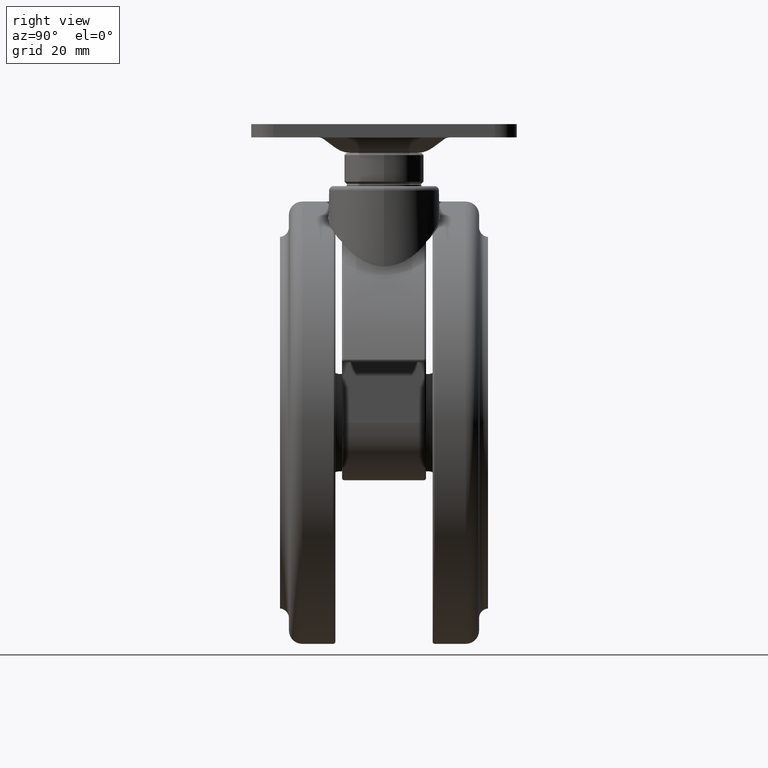
[diagram: clean part render]
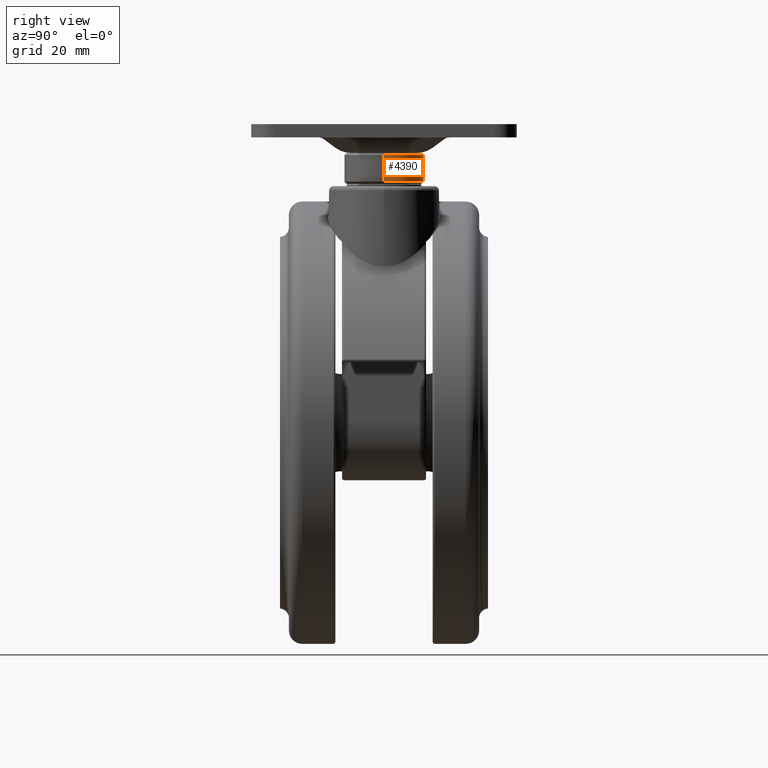
[diagram: same view with one face highlighted and labeled with its STEP entity id]
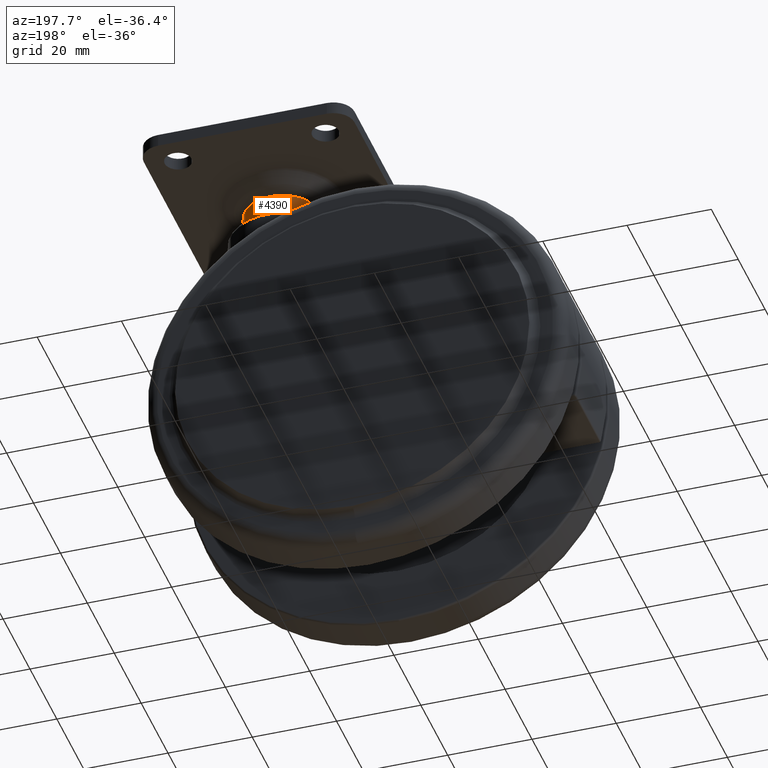
[diagram: same view with one face highlighted and labeled with its STEP entity id]
A machine part, right view. The second image highlights one B-rep face of the part: STEP entity #4390.
A second angle (auxiliary view) of the same face is appended — the face is thin or edge-on in the first view.
In plain terms, the highlighted cylindrical surface (partial cylindrical patch) has radius 9 mm, axis along (0, 0, -1).
Its self-contained STEP definition (entity closure, byte-faithful):
#74 = DIRECTION ( 'NONE',  ( 0.0000000000000000000, 0.0000000000000000000, -1.000000000000000000 ) ) ;
#143 = EDGE_CURVE ( 'NONE', #4048, #2984, #1860, .T. ) ;
#185 = CARTESIAN_POINT ( 'NONE',  ( 9.000000000000000000, 0.0000000000000000000, 1.000000000000000000 ) ) ;
#522 = ORIENTED_EDGE ( 'NONE', *, *, #3384, .F. ) ;
#593 = ORIENTED_EDGE ( 'NONE', *, *, #143, .T. ) ;
#691 = FACE_OUTER_BOUND ( 'NONE', #5001, .T. ) ;
#767 = CARTESIAN_POINT ( 'NONE',  ( 9.000000000000000000, 1.102182119232617700E-015, 7.000000000000000000 ) ) ;
#891 = AXIS2_PLACEMENT_3D ( 'NONE', #3608, #2786, #5239 ) ;
#1493 = DIRECTION ( 'NONE',  ( 0.0000000000000000000, 0.0000000000000000000, -1.000000000000000000 ) ) ;
#1514 = CYLINDRICAL_SURFACE ( 'NONE', #891, 9.000000000000000000 ) ;
#1580 = DIRECTION ( 'NONE',  ( 0.0000000000000000000, 0.0000000000000000000, -1.000000000000000000 ) ) ;
#1692 = DIRECTION ( 'NONE',  ( 0.0000000000000000000, 0.0000000000000000000, -1.000000000000000000 ) ) ;
#1860 = LINE ( 'NONE', #1915, #2704 ) ;
#1915 = CARTESIAN_POINT ( 'NONE',  ( 9.000000000000000000, 1.102182119232617700E-015, 0.0000000000000000000 ) ) ;
#1921 = CARTESIAN_POINT ( 'NONE',  ( -9.000000000000000000, 1.102182119232617700E-015, 1.000000000000000000 ) ) ;
#2104 = VECTOR ( 'NONE', #74, 1000.000000000000000 ) ;
#2263 = AXIS2_PLACEMENT_3D ( 'NONE', #4059, #1580, #4462 ) ;
#2274 = EDGE_CURVE ( 'NONE', #2919, #4048, #3218, .T. ) ;
#2704 = VECTOR ( 'NONE', #1493, 1000.000000000000000 ) ;
#2786 = DIRECTION ( 'NONE',  ( 0.0000000000000000000, 0.0000000000000000000, -1.000000000000000000 ) ) ;
#2919 = VERTEX_POINT ( 'NONE', #4664 ) ;
#2984 = VERTEX_POINT ( 'NONE', #185 ) ;
#3208 = LINE ( 'NONE', #4622, #2104 ) ;
#3218 = CIRCLE ( 'NONE', #3687, 9.000000000000000000 ) ;
#3384 = EDGE_CURVE ( 'NONE', #2919, #3951, #3208, .T. ) ;
#3608 = CARTESIAN_POINT ( 'NONE',  ( 0.0000000000000000000, 0.0000000000000000000, 0.0000000000000000000 ) ) ;
#3671 = ORIENTED_EDGE ( 'NONE', *, *, #2274, .T. ) ;
#3687 = AXIS2_PLACEMENT_3D ( 'NONE', #4153, #1692, #4559 ) ;
#3951 = VERTEX_POINT ( 'NONE', #1921 ) ;
#4048 = VERTEX_POINT ( 'NONE', #767 ) ;
#4059 = CARTESIAN_POINT ( 'NONE',  ( 0.0000000000000000000, 0.0000000000000000000, 1.000000000000000000 ) ) ;
#4153 = CARTESIAN_POINT ( 'NONE',  ( 0.0000000000000000000, 0.0000000000000000000, 7.000000000000000000 ) ) ;
#4390 = ADVANCED_FACE ( 'NONE', ( #691 ), #1514, .T. ) ;
#4462 = DIRECTION ( 'NONE',  ( -1.000000000000000000, 0.0000000000000000000, 0.0000000000000000000 ) ) ;
#4533 = ORIENTED_EDGE ( 'NONE', *, *, #4868, .F. ) ;
#4559 = DIRECTION ( 'NONE',  ( -1.000000000000000000, 0.0000000000000000000, 0.0000000000000000000 ) ) ;
#4622 = CARTESIAN_POINT ( 'NONE',  ( -9.000000000000000000, 0.0000000000000000000, 0.0000000000000000000 ) ) ;
#4664 = CARTESIAN_POINT ( 'NONE',  ( -9.000000000000000000, 0.0000000000000000000, 7.000000000000000000 ) ) ;
#4868 = EDGE_CURVE ( 'NONE', #3951, #2984, #5322, .T. ) ;
#5001 = EDGE_LOOP ( 'NONE', ( #3671, #593, #4533, #522 ) ) ;
#5239 = DIRECTION ( 'NONE',  ( -1.000000000000000000, 0.0000000000000000000, 0.0000000000000000000 ) ) ;
#5322 = CIRCLE ( 'NONE', #2263, 9.000000000000000000 ) ;